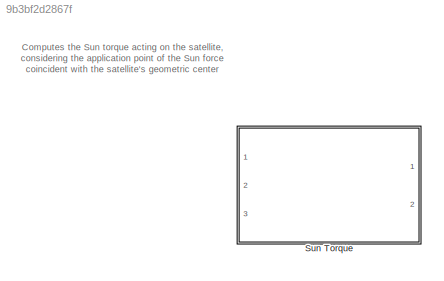
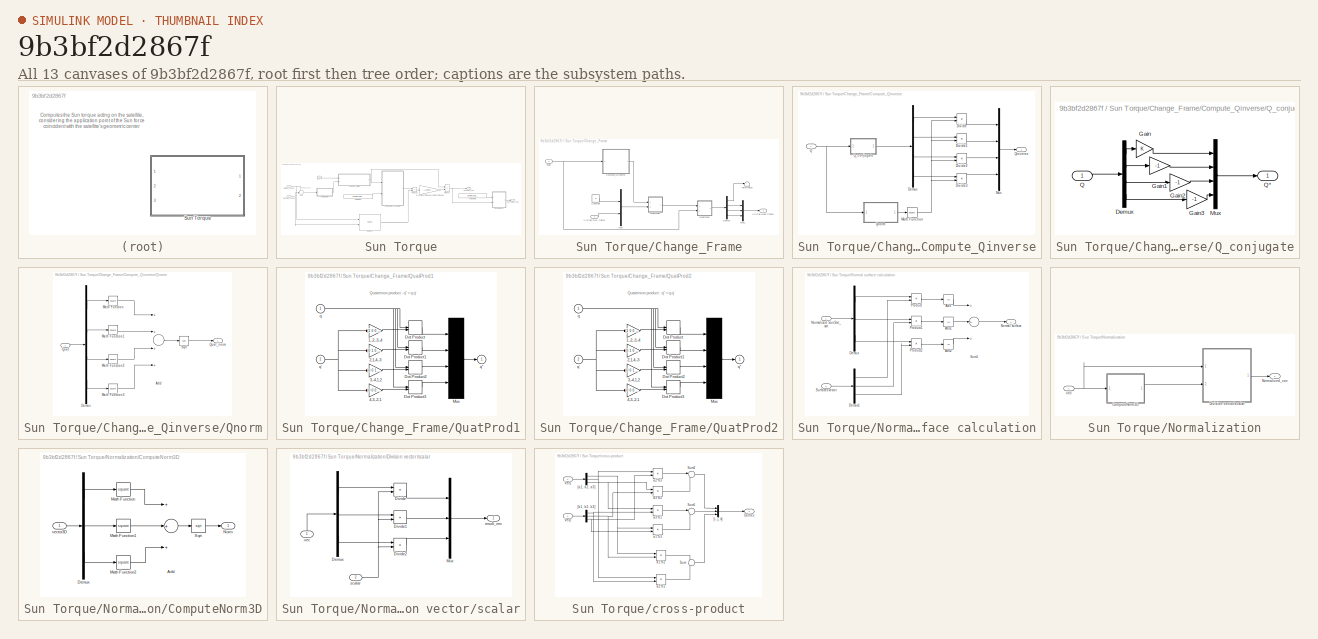
[diagram: thumbnail index - all 13 canvases of the model, root first then tree order]
MODEL slx_9b3bf2d2867f
KIND library
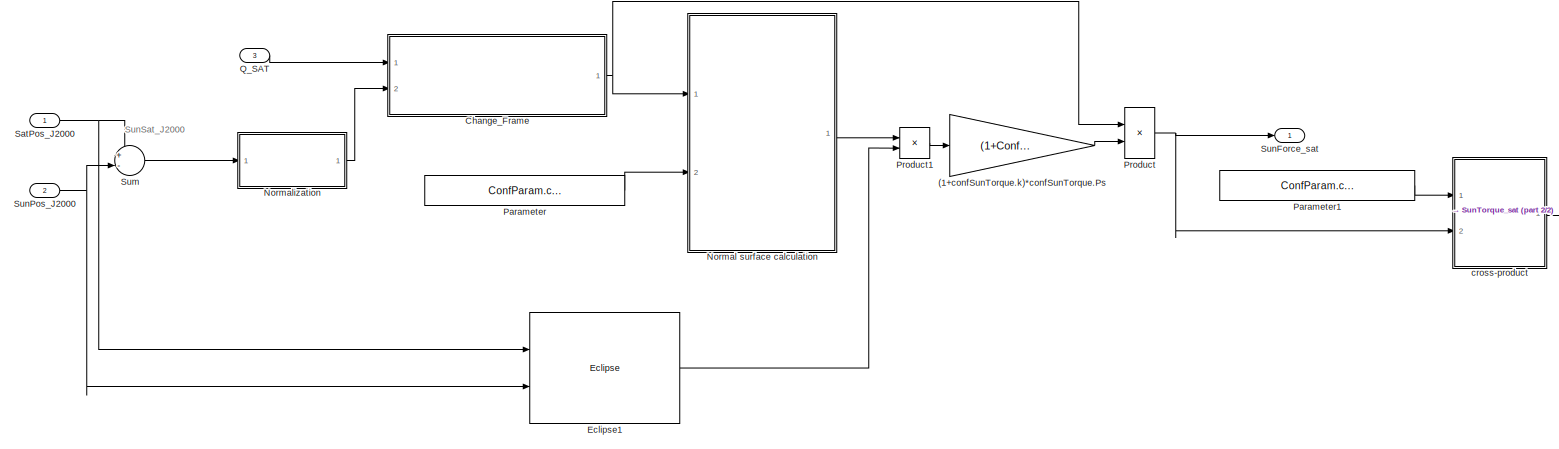
[diagram: Sun Torque - part 1/2, most of the canvas]
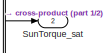
[diagram: Sun Torque - part 2/2, middle right region]
BLOCK [SubSystem] Sun Torque
  Ports = [3, 2]
  RequestExecContextInheritance = off
BLOCK [Gain] Sun Torque/(1+confSunTorque.k)*confSunTorque.Ps
  Gain = (1+ConfParam.confSunTorqueC.k)*ConfParam.confSunTorqueC.Ps
  OutDataTypeStr = Inherit: Inherit via internal rule
  ParamDataTypeStr = Inherit: Inherit via internal rule
  SaturateOnIntegerOverflow = off
BLOCK [SubSystem] Sun Torque/Change_Frame
  Ports = [2, 1]
  RequestExecContextInheritance = off
BLOCK [SubSystem] Sun Torque/Change_Frame/Compute_Qinverse
  Ports = [1, 1]
  RequestExecContextInheritance = off
BLOCK [Demux] Sun Torque/Change_Frame/Compute_Qinverse/Demux
  DisplayOption = bar
  Ports = [1, 4]
BLOCK [Product] Sun Torque/Change_Frame/Compute_Qinverse/Divide
  InputSameDT = off
  Inputs = */
  OutDataTypeStr = Inherit: Inherit via internal rule
  Ports = [2, 1]
  RndMeth = Floor
  SaturateOnIntegerOverflow = off
BLOCK [Product] Sun Torque/Change_Frame/Compute_Qinverse/Divide1
  InputSameDT = off
  Inputs = */
  OutDataTypeStr = Inherit: Inherit via internal rule
  Ports = [2, 1]
  RndMeth = Floor
  SaturateOnIntegerOverflow = off
BLOCK [Product] Sun Torque/Change_Frame/Compute_Qinverse/Divide2
  InputSameDT = off
  Inputs = */
  OutDataTypeStr = Inherit: Inherit via internal rule
  Ports = [2, 1]
  RndMeth = Floor
  SaturateOnIntegerOverflow = off
BLOCK [Product] Sun Torque/Change_Frame/Compute_Qinverse/Divide3
  InputSameDT = off
  Inputs = */
  OutDataTypeStr = Inherit: Inherit via internal rule
  Ports = [2, 1]
  RndMeth = Floor
  SaturateOnIntegerOverflow = off
BLOCK [Math] Sun Torque/Change_Frame/Compute_Qinverse/Math Function
  Operator = square
  Ports = [1, 1]
BLOCK [Mux] Sun Torque/Change_Frame/Compute_Qinverse/Mux
  DisplayOption = bar
  Ports = [4, 1]
BLOCK [Inport] Sun Torque/Change_Frame/Compute_Qinverse/Q
  IconDisplay = Port number
BLOCK [SubSystem] Sun Torque/Change_Frame/Compute_Qinverse/Q_conjugate
  Ports = [1, 1]
  RequestExecContextInheritance = off
BLOCK [Demux] Sun Torque/Change_Frame/Compute_Qinverse/Q_conjugate/Demux
  DisplayOption = bar
  Ports = [1, 4]
BLOCK [Gain] Sun Torque/Change_Frame/Compute_Qinverse/Q_conjugate/Gain
  OutDataTypeStr = Inherit: Inherit via internal rule
  ParamDataTypeStr = Inherit: Inherit via internal rule
  SaturateOnIntegerOverflow = off
BLOCK [Gain] Sun Torque/Change_Frame/Compute_Qinverse/Q_conjugate/Gain1
  Gain = -1
  OutDataTypeStr = Inherit: Inherit via internal rule
  ParamDataTypeStr = Inherit: Inherit via internal rule
  SaturateOnIntegerOverflow = off
BLOCK [Gain] Sun Torque/Change_Frame/Compute_Qinverse/Q_conjugate/Gain2
  Gain = -1
  OutDataTypeStr = Inherit: Inherit via internal rule
  ParamDataTypeStr = Inherit: Inherit via internal rule
  SaturateOnIntegerOverflow = off
BLOCK [Gain] Sun Torque/Change_Frame/Compute_Qinverse/Q_conjugate/Gain3
  Gain = -1
  OutDataTypeStr = Inherit: Inherit via internal rule
  ParamDataTypeStr = Inherit: Inherit via internal rule
  SaturateOnIntegerOverflow = off
BLOCK [Mux] Sun Torque/Change_Frame/Compute_Qinverse/Q_conjugate/Mux
  DisplayOption = bar
  Ports = [4, 1]
BLOCK [Inport] Sun Torque/Change_Frame/Compute_Qinverse/Q_conjugate/Q
  IconDisplay = Port number
BLOCK [Outport] Sun Torque/Change_Frame/Compute_Qinverse/Q_conjugate/Q*
  IconDisplay = Port number
BLOCK [Outport] Sun Torque/Change_Frame/Compute_Qinverse/Qinverse
  IconDisplay = Port number
BLOCK [SubSystem] Sun Torque/Change_Frame/Compute_Qinverse/Qnorm
  Ports = [1, 1]
  RequestExecContextInheritance = off
BLOCK [Sum] Sun Torque/Change_Frame/Compute_Qinverse/Qnorm/Add
  InputSameDT = off
  Inputs = ++++
  OutDataTypeStr = Inherit: Inherit via internal rule
  Ports = [4, 1]
  SaturateOnIntegerOverflow = off
BLOCK [Demux] Sun Torque/Change_Frame/Compute_Qinverse/Qnorm/Demux
  DisplayOption = bar
  Ports = [1, 4]
BLOCK [Math] Sun Torque/Change_Frame/Compute_Qinverse/Qnorm/Math Function
  Operator = square
  Ports = [1, 1]
BLOCK [Math] Sun Torque/Change_Frame/Compute_Qinverse/Qnorm/Math Function1
  Operator = square
  Ports = [1, 1]
BLOCK [Math] Sun Torque/Change_Frame/Compute_Qinverse/Qnorm/Math Function2
  Operator = square
  Ports = [1, 1]
BLOCK [Math] Sun Torque/Change_Frame/Compute_Qinverse/Qnorm/Math Function3
  Operator = square
  Ports = [1, 1]
BLOCK [Inport] Sun Torque/Change_Frame/Compute_Qinverse/Qnorm/Quat
  IconDisplay = Port number
BLOCK [Outport] Sun Torque/Change_Frame/Compute_Qinverse/Qnorm/Quat_norm
  IconDisplay = Port number
BLOCK [Sqrt] Sun Torque/Change_Frame/Compute_Qinverse/Qnorm/Sqrt
BLOCK [Constant] Sun Torque/Change_Frame/Constant
  Value = 0
BLOCK [Demux] Sun Torque/Change_Frame/Demux
  DisplayOption = bar
  Ports = [1, 4]
BLOCK [Mux] Sun Torque/Change_Frame/Mux
  DisplayOption = bar
  Inputs = 2
  Ports = [2, 1]
BLOCK [Mux] Sun Torque/Change_Frame/Mux1
  DisplayOption = bar
  Inputs = 3
  Ports = [3, 1]
BLOCK [SubSystem] Sun Torque/Change_Frame/QuatProd1
  Ports = [2, 1]
  RTWFcnNameOpts = Use subsystem name
  RTWFileNameOpts = Use subsystem name
  RTWSystemCode = Reusable function
  RequestExecContextInheritance = off
  TreatAsAtomicUnit = on
BLOCK [Gain] Sun Torque/Change_Frame/QuatProd1/1,-2,-3,-4
  Gain = [1 0 0 0;0 -1 0 0;0 0 -1 0;0 0 0 -1]
  Multiplication = Matrix(K*u) (u vector)
BLOCK [Gain] Sun Torque/Change_Frame/QuatProd1/2,1,4,-3
  Gain = [0 1 0 0 ; 1 0 0 0 ; 0 0 0 1 ; 0 0 -1 0]
  Multiplication = Matrix(K*u) (u vector)
BLOCK [Gain] Sun Torque/Change_Frame/QuatProd1/3,-4,1,2
  Gain = [0 0 1 0 ; 0 0 0 -1 ; 1 0 0 0 ; 0 1 0 0]
  Multiplication = Matrix(K*u) (u vector)
BLOCK [Gain] Sun Torque/Change_Frame/QuatProd1/4,3,-2,1
  Gain = [0 0 0 1;0 0 1 0 ; 0 -1 0 0 ; 1 0 0 0]
  Multiplication = Matrix(K*u) (u vector)
BLOCK [DotProduct] Sun Torque/Change_Frame/QuatProd1/Dot Product
  OutDataTypeStr = Inherit: Inherit via internal rule
BLOCK [DotProduct] Sun Torque/Change_Frame/QuatProd1/Dot Product1
  OutDataTypeStr = Inherit: Inherit via internal rule
BLOCK [DotProduct] Sun Torque/Change_Frame/QuatProd1/Dot Product2
  OutDataTypeStr = Inherit: Inherit via internal rule
BLOCK [DotProduct] Sun Torque/Change_Frame/QuatProd1/Dot Product3
  OutDataTypeStr = Inherit: Inherit via internal rule
BLOCK [Mux] Sun Torque/Change_Frame/QuatProd1/Mux
  Ports = [4, 1]
BLOCK [Inport] Sun Torque/Change_Frame/QuatProd1/q
  IconDisplay = Port number
  OutDataTypeStr = double
  PortDimensions = 4
BLOCK [Outport] Sun Torque/Change_Frame/QuatProd1/q"
  IconDisplay = Port number
  InitialOutput = 0
  OutDataTypeStr = double
  PortDimensions = 4
BLOCK [Inport] Sun Torque/Change_Frame/QuatProd1/q'
  IconDisplay = Port number
  OutDataTypeStr = double
  Port = 2
  PortDimensions = 4
BLOCK [SubSystem] Sun Torque/Change_Frame/QuatProd2
  Ports = [2, 1]
  RTWFcnNameOpts = Use subsystem name
  RTWFileNameOpts = Use subsystem name
  RTWSystemCode = Reusable function
  RequestExecContextInheritance = off
  TreatAsAtomicUnit = on
BLOCK [Gain] Sun Torque/Change_Frame/QuatProd2/1,-2,-3,-4
  Gain = [1 0 0 0;0 -1 0 0;0 0 -1 0;0 0 0 -1]
  Multiplication = Matrix(K*u) (u vector)
BLOCK [Gain] Sun Torque/Change_Frame/QuatProd2/2,1,4,-3
  Gain = [0 1 0 0 ; 1 0 0 0 ; 0 0 0 1 ; 0 0 -1 0]
  Multiplication = Matrix(K*u) (u vector)
BLOCK [Gain] Sun Torque/Change_Frame/QuatProd2/3,-4,1,2
  Gain = [0 0 1 0 ; 0 0 0 -1 ; 1 0 0 0 ; 0 1 0 0]
  Multiplication = Matrix(K*u) (u vector)
BLOCK [Gain] Sun Torque/Change_Frame/QuatProd2/4,3,-2,1
  Gain = [0 0 0 1;0 0 1 0 ; 0 -1 0 0 ; 1 0 0 0]
  Multiplication = Matrix(K*u) (u vector)
BLOCK [DotProduct] Sun Torque/Change_Frame/QuatProd2/Dot Product
  OutDataTypeStr = Inherit: Inherit via internal rule
BLOCK [DotProduct] Sun Torque/Change_Frame/QuatProd2/Dot Product1
  OutDataTypeStr = Inherit: Inherit via internal rule
BLOCK [DotProduct] Sun Torque/Change_Frame/QuatProd2/Dot Product2
  OutDataTypeStr = Inherit: Inherit via internal rule
BLOCK [DotProduct] Sun Torque/Change_Frame/QuatProd2/Dot Product3
  OutDataTypeStr = Inherit: Inherit via internal rule
BLOCK [Mux] Sun Torque/Change_Frame/QuatProd2/Mux
  Ports = [4, 1]
BLOCK [Inport] Sun Torque/Change_Frame/QuatProd2/q
  IconDisplay = Port number
  OutDataTypeStr = double
  PortDimensions = 4
BLOCK [Outport] Sun Torque/Change_Frame/QuatProd2/q"
  IconDisplay = Port number
  InitialOutput = 0
  OutDataTypeStr = double
  PortDimensions = 4
BLOCK [Inport] Sun Torque/Change_Frame/QuatProd2/q'
  IconDisplay = Port number
  OutDataTypeStr = double
  Port = 2
  PortDimensions = 4
BLOCK [Terminator] Sun Torque/Change_Frame/Terminator
BLOCK [Inport] Sun Torque/Change_Frame/quat
  IconDisplay = Port number
BLOCK [Outport] Sun Torque/Change_Frame/v in the NEW frame
  IconDisplay = Port number
BLOCK [Inport] Sun Torque/Change_Frame/v in the OLD frame
  IconDisplay = Port number
  Port = 2
BLOCK [Reference] Sun Torque/Eclipse1  REF=Eclipse/Eclipse
  Ports = [2, 1]
  SourceBlock = Eclipse/Eclipse
  SourceType = SubSystem
BLOCK [SubSystem] Sun Torque/Normal surface calculation
  Ports = [2, 1]
  RequestExecContextInheritance = off
BLOCK [Abs] Sun Torque/Normal surface calculation/Abs
  SaturateOnIntegerOverflow = off
BLOCK [Abs] Sun Torque/Normal surface calculation/Abs1
  SaturateOnIntegerOverflow = off
BLOCK [Abs] Sun Torque/Normal surface calculation/Abs2
  SaturateOnIntegerOverflow = off
BLOCK [Demux] Sun Torque/Normal surface calculation/Demux
  DisplayOption = bar
  Outputs = 3
  Ports = [1, 3]
BLOCK [Demux] Sun Torque/Normal surface calculation/Demux1
  DisplayOption = bar
  Outputs = 3
  Ports = [1, 3]
BLOCK [Outport] Sun Torque/Normal surface calculation/Normal surface
  IconDisplay = Port number
BLOCK [Inport] Sun Torque/Normal surface calculation/Normalized SunSat_sat 
  IconDisplay = Port number
BLOCK [Product] Sun Torque/Normal surface calculation/Product
  InputSameDT = off
  OutDataTypeStr = Inherit: Inherit via internal rule
  Ports = [2, 1]
  RndMeth = Floor
  SaturateOnIntegerOverflow = off
BLOCK [Product] Sun Torque/Normal surface calculation/Product1
  InputSameDT = off
  OutDataTypeStr = Inherit: Inherit via internal rule
  Ports = [2, 1]
  RndMeth = Floor
  SaturateOnIntegerOverflow = off
BLOCK [Product] Sun Torque/Normal surface calculation/Product2
  InputSameDT = off
  OutDataTypeStr = Inherit: Inherit via internal rule
  Ports = [2, 1]
  RndMeth = Floor
  SaturateOnIntegerOverflow = off
BLOCK [Sum] Sun Torque/Normal surface calculation/Sum1
  InputSameDT = off
  Inputs = +++
  OutDataTypeStr = Inherit: Inherit via internal rule
  Ports = [3, 1]
  SaturateOnIntegerOverflow = off
BLOCK [Inport] Sun Torque/Normal surface calculation/Surfaces vector
  IconDisplay = Port number
  Port = 2
BLOCK [SubSystem] Sun Torque/Normalization
  Ports = [1, 1]
  RequestExecContextInheritance = off
BLOCK [SubSystem] Sun Torque/Normalization/ComputeNorm3D
  Ports = [1, 1]
  RequestExecContextInheritance = off
BLOCK [Sum] Sun Torque/Normalization/ComputeNorm3D/Add
  InputSameDT = off
  Inputs = +++
  OutDataTypeStr = Inherit: Inherit via internal rule
  Ports = [3, 1]
  SaturateOnIntegerOverflow = off
BLOCK [Demux] Sun Torque/Normalization/ComputeNorm3D/Demux
  DisplayOption = bar
  Outputs = 3
  Ports = [1, 3]
BLOCK [Math] Sun Torque/Normalization/ComputeNorm3D/Math Function
  Operator = square
  Ports = [1, 1]
BLOCK [Math] Sun Torque/Normalization/ComputeNorm3D/Math Function1
  Operator = square
  Ports = [1, 1]
BLOCK [Math] Sun Torque/Normalization/ComputeNorm3D/Math Function2
  Operator = square
  Ports = [1, 1]
BLOCK [Outport] Sun Torque/Normalization/ComputeNorm3D/Norm
  IconDisplay = Port number
BLOCK [Sqrt] Sun Torque/Normalization/ComputeNorm3D/Sqrt
BLOCK [Inport] Sun Torque/Normalization/ComputeNorm3D/vector3D
  IconDisplay = Port number
BLOCK [SubSystem] Sun Torque/Normalization/Division vector//scalar
  Ports = [2, 1]
  RequestExecContextInheritance = off
BLOCK [Demux] Sun Torque/Normalization/Division vector//scalar/Demux
  DisplayOption = bar
  Outputs = 3
  Ports = [1, 3]
BLOCK [Product] Sun Torque/Normalization/Division vector//scalar/Divide
  InputSameDT = off
  Inputs = */
  OutDataTypeStr = Inherit: Inherit via internal rule
  Ports = [2, 1]
  RndMeth = Floor
  SaturateOnIntegerOverflow = off
BLOCK [Product] Sun Torque/Normalization/Division vector//scalar/Divide1
  InputSameDT = off
  Inputs = */
  OutDataTypeStr = Inherit: Inherit via internal rule
  Ports = [2, 1]
  RndMeth = Floor
  SaturateOnIntegerOverflow = off
BLOCK [Product] Sun Torque/Normalization/Division vector//scalar/Divide2
  InputSameDT = off
  Inputs = */
  OutDataTypeStr = Inherit: Inherit via internal rule
  Ports = [2, 1]
  RndMeth = Floor
  SaturateOnIntegerOverflow = off
BLOCK [Mux] Sun Torque/Normalization/Division vector//scalar/Mux
  DisplayOption = bar
  Inputs = 3
  Ports = [3, 1]
BLOCK [Outport] Sun Torque/Normalization/Division vector//scalar/result_vec
  IconDisplay = Port number
BLOCK [Inport] Sun Torque/Normalization/Division vector//scalar/scalar
  IconDisplay = Port number
  Port = 2
BLOCK [Inport] Sun Torque/Normalization/Division vector//scalar/vec
  IconDisplay = Port number
BLOCK [Outport] Sun Torque/Normalization/Normalized_vec
  IconDisplay = Port number
BLOCK [Inport] Sun Torque/Normalization/vec
  IconDisplay = Port number
BLOCK [Constant] Sun Torque/Parameter
  Value = ConfParam.confSatFeatures.Surfaces
BLOCK [Constant] Sun Torque/Parameter1
  Value = ConfParam.confSunTorqueC.LeverArm
BLOCK [Product] Sun Torque/Product
  InputSameDT = off
  OutDataTypeStr = Inherit: Inherit via internal rule
  Ports = [2, 1]
  RndMeth = Floor
  SaturateOnIntegerOverflow = off
BLOCK [Product] Sun Torque/Product1
  InputSameDT = off
  OutDataTypeStr = Inherit: Inherit via internal rule
  Ports = [2, 1]
  RndMeth = Floor
  SaturateOnIntegerOverflow = off
BLOCK [Inport] Sun Torque/Q_SAT
  IconDisplay = Port number
  Port = 3
BLOCK [Inport] Sun Torque/SatPos_J2000
  IconDisplay = Port number
BLOCK [Sum] Sun Torque/Sum
  IconShape = round
  InputSameDT = off
  Inputs = +-
  OutDataTypeStr = Inherit: Inherit via internal rule
  Ports = [2, 1]
  SaturateOnIntegerOverflow = off
BLOCK [Outport] Sun Torque/SunForce_sat
  IconDisplay = Port number
BLOCK [Inport] Sun Torque/SunPos_J2000
  IconDisplay = Port number
  Port = 2
BLOCK [Outport] Sun Torque/SunTorque_sat
  IconDisplay = Port number
  Port = 2
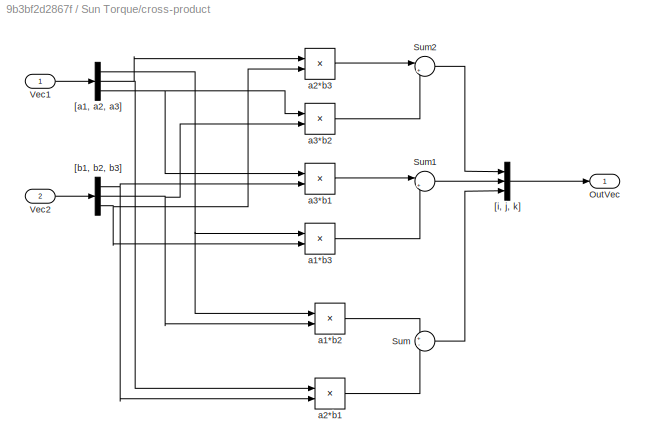
BLOCK [SubSystem] Sun Torque/cross-product
  Ports = [2, 1]
  RequestExecContextInheritance = off
BLOCK [Outport] Sun Torque/cross-product/OutVec
  IconDisplay = Port number
BLOCK [Sum] Sun Torque/cross-product/Sum
  IconShape = round
  InputSameDT = off
  Inputs = +-
  OutDataTypeStr = Inherit: Inherit via internal rule
  Ports = [2, 1]
  SaturateOnIntegerOverflow = off
BLOCK [Sum] Sun Torque/cross-product/Sum1
  IconShape = round
  InputSameDT = off
  Inputs = |+-
  OutDataTypeStr = Inherit: Inherit via internal rule
  Ports = [2, 1]
  SaturateOnIntegerOverflow = off
BLOCK [Sum] Sun Torque/cross-product/Sum2
  IconShape = round
  InputSameDT = off
  Inputs = |+-
  OutDataTypeStr = Inherit: Inherit via internal rule
  Ports = [2, 1]
  SaturateOnIntegerOverflow = off
BLOCK [Inport] Sun Torque/cross-product/Vec1
  IconDisplay = Port number
BLOCK [Inport] Sun Torque/cross-product/Vec2
  IconDisplay = Port number
  Port = 2
BLOCK [Demux] Sun Torque/cross-product/[a1, a2, a3]
  DisplayOption = bar
  Outputs = 3
  Ports = [1, 3]
BLOCK [Demux] Sun Torque/cross-product/[b1, b2, b3]
  DisplayOption = bar
  Outputs = 3
  Ports = [1, 3]
BLOCK [Mux] Sun Torque/cross-product/[i, j, k]
  DisplayOption = bar
  Inputs = 3
  Ports = [3, 1]
BLOCK [Product] Sun Torque/cross-product/a1*b2
  InputSameDT = off
  OutDataTypeStr = Inherit: Inherit via internal rule
  Ports = [2, 1]
  RndMeth = Floor
  SaturateOnIntegerOverflow = off
BLOCK [Product] Sun Torque/cross-product/a1*b3
  InputSameDT = off
  OutDataTypeStr = Inherit: Inherit via internal rule
  Ports = [2, 1]
  RndMeth = Floor
  SaturateOnIntegerOverflow = off
BLOCK [Product] Sun Torque/cross-product/a2*b1
  InputSameDT = off
  OutDataTypeStr = Inherit: Inherit via internal rule
  Ports = [2, 1]
  RndMeth = Floor
  SaturateOnIntegerOverflow = off
BLOCK [Product] Sun Torque/cross-product/a2*b3
  InputSameDT = off
  OutDataTypeStr = Inherit: Inherit via internal rule
  Ports = [2, 1]
  RndMeth = Floor
  SaturateOnIntegerOverflow = off
BLOCK [Product] Sun Torque/cross-product/a3*b1
  InputSameDT = off
  OutDataTypeStr = Inherit: Inherit via internal rule
  Ports = [2, 1]
  RndMeth = Floor
  SaturateOnIntegerOverflow = off
BLOCK [Product] Sun Torque/cross-product/a3*b2
  InputSameDT = off
  OutDataTypeStr = Inherit: Inherit via internal rule
  Ports = [2, 1]
  RndMeth = Floor
  SaturateOnIntegerOverflow = off
ANNOTATION (root): Computes the Sun torque acting on the satellite, considering the application point of the Sun force coincident with the satellite's geometric center
ANNOTATION Sun Torque: SunSat_J2000
ANNOTATION Sun Torque/Change_Frame/QuatProd1: Quaternion product : q" = q.q'
ANNOTATION Sun Torque/Change_Frame/QuatProd2: Quaternion product : q" = q.q'
LINE Sun Torque/(1+confSunTorque.k)*confSunTorque.Ps:1 -> Sun Torque/Product:2
LINE Sun Torque/Change_Frame/Compute_Qinverse/Demux:1 -> Sun Torque/Change_Frame/Compute_Qinverse/Divide:1
LINE Sun Torque/Change_Frame/Compute_Qinverse/Demux:2 -> Sun Torque/Change_Frame/Compute_Qinverse/Divide1:1
LINE Sun Torque/Change_Frame/Compute_Qinverse/Demux:3 -> Sun Torque/Change_Frame/Compute_Qinverse/Divide2:1
LINE Sun Torque/Change_Frame/Compute_Qinverse/Demux:4 -> Sun Torque/Change_Frame/Compute_Qinverse/Divide3:1
LINE Sun Torque/Change_Frame/Compute_Qinverse/Divide1:1 -> Sun Torque/Change_Frame/Compute_Qinverse/Mux:2
LINE Sun Torque/Change_Frame/Compute_Qinverse/Divide2:1 -> Sun Torque/Change_Frame/Compute_Qinverse/Mux:3
LINE Sun Torque/Change_Frame/Compute_Qinverse/Divide3:1 -> Sun Torque/Change_Frame/Compute_Qinverse/Mux:4
LINE Sun Torque/Change_Frame/Compute_Qinverse/Divide:1 -> Sun Torque/Change_Frame/Compute_Qinverse/Mux:1
NET Sun Torque/Change_Frame/Compute_Qinverse/Math Function:1 -> Sun Torque/Change_Frame/Compute_Qinverse/Divide1:2, Sun Torque/Change_Frame/Compute_Qinverse/Divide2:2, Sun Torque/Change_Frame/Compute_Qinverse/Divide3:2, Sun Torque/Change_Frame/Compute_Qinverse/Divide:2
LINE Sun Torque/Change_Frame/Compute_Qinverse/Mux:1 -> Sun Torque/Change_Frame/Compute_Qinverse/Qinverse:1
NET Sun Torque/Change_Frame/Compute_Qinverse/Q:1 -> Sun Torque/Change_Frame/Compute_Qinverse/Q_conjugate:1, Sun Torque/Change_Frame/Compute_Qinverse/Qnorm:1
LINE Sun Torque/Change_Frame/Compute_Qinverse/Q_conjugate/Demux:1 -> Sun Torque/Change_Frame/Compute_Qinverse/Q_conjugate/Gain:1
LINE Sun Torque/Change_Frame/Compute_Qinverse/Q_conjugate/Demux:2 -> Sun Torque/Change_Frame/Compute_Qinverse/Q_conjugate/Gain1:1
LINE Sun Torque/Change_Frame/Compute_Qinverse/Q_conjugate/Demux:3 -> Sun Torque/Change_Frame/Compute_Qinverse/Q_conjugate/Gain2:1
LINE Sun Torque/Change_Frame/Compute_Qinverse/Q_conjugate/Demux:4 -> Sun Torque/Change_Frame/Compute_Qinverse/Q_conjugate/Gain3:1
LINE Sun Torque/Change_Frame/Compute_Qinverse/Q_conjugate/Gain1:1 -> Sun Torque/Change_Frame/Compute_Qinverse/Q_conjugate/Mux:2
LINE Sun Torque/Change_Frame/Compute_Qinverse/Q_conjugate/Gain2:1 -> Sun Torque/Change_Frame/Compute_Qinverse/Q_conjugate/Mux:3
LINE Sun Torque/Change_Frame/Compute_Qinverse/Q_conjugate/Gain3:1 -> Sun Torque/Change_Frame/Compute_Qinverse/Q_conjugate/Mux:4
LINE Sun Torque/Change_Frame/Compute_Qinverse/Q_conjugate/Gain:1 -> Sun Torque/Change_Frame/Compute_Qinverse/Q_conjugate/Mux:1
LINE Sun Torque/Change_Frame/Compute_Qinverse/Q_conjugate/Mux:1 -> Sun Torque/Change_Frame/Compute_Qinverse/Q_conjugate/Q*:1
LINE Sun Torque/Change_Frame/Compute_Qinverse/Q_conjugate/Q:1 -> Sun Torque/Change_Frame/Compute_Qinverse/Q_conjugate/Demux:1
LINE Sun Torque/Change_Frame/Compute_Qinverse/Q_conjugate:1 -> Sun Torque/Change_Frame/Compute_Qinverse/Demux:1
LINE Sun Torque/Change_Frame/Compute_Qinverse/Qnorm/Add:1 -> Sun Torque/Change_Frame/Compute_Qinverse/Qnorm/Sqrt:1
LINE Sun Torque/Change_Frame/Compute_Qinverse/Qnorm/Demux:1 -> Sun Torque/Change_Frame/Compute_Qinverse/Qnorm/Math Function:1
LINE Sun Torque/Change_Frame/Compute_Qinverse/Qnorm/Demux:2 -> Sun Torque/Change_Frame/Compute_Qinverse/Qnorm/Math Function1:1
LINE Sun Torque/Change_Frame/Compute_Qinverse/Qnorm/Demux:3 -> Sun Torque/Change_Frame/Compute_Qinverse/Qnorm/Math Function2:1
LINE Sun Torque/Change_Frame/Compute_Qinverse/Qnorm/Demux:4 -> Sun Torque/Change_Frame/Compute_Qinverse/Qnorm/Math Function3:1
LINE Sun Torque/Change_Frame/Compute_Qinverse/Qnorm/Math Function1:1 -> Sun Torque/Change_Frame/Compute_Qinverse/Qnorm/Add:2
LINE Sun Torque/Change_Frame/Compute_Qinverse/Qnorm/Math Function2:1 -> Sun Torque/Change_Frame/Compute_Qinverse/Qnorm/Add:3
LINE Sun Torque/Change_Frame/Compute_Qinverse/Qnorm/Math Function3:1 -> Sun Torque/Change_Frame/Compute_Qinverse/Qnorm/Add:4
LINE Sun Torque/Change_Frame/Compute_Qinverse/Qnorm/Math Function:1 -> Sun Torque/Change_Frame/Compute_Qinverse/Qnorm/Add:1
LINE Sun Torque/Change_Frame/Compute_Qinverse/Qnorm/Quat:1 -> Sun Torque/Change_Frame/Compute_Qinverse/Qnorm/Demux:1
LINE Sun Torque/Change_Frame/Compute_Qinverse/Qnorm/Sqrt:1 -> Sun Torque/Change_Frame/Compute_Qinverse/Qnorm/Quat_norm:1
LINE Sun Torque/Change_Frame/Compute_Qinverse/Qnorm:1 -> Sun Torque/Change_Frame/Compute_Qinverse/Math Function:1
LINE Sun Torque/Change_Frame/Compute_Qinverse:1 -> Sun Torque/Change_Frame/QuatProd1:1
LINE Sun Torque/Change_Frame/Constant:1 -> Sun Torque/Change_Frame/Mux:1
LINE Sun Torque/Change_Frame/Demux:1 -> Sun Torque/Change_Frame/Terminator:1
LINE Sun Torque/Change_Frame/Demux:2 -> Sun Torque/Change_Frame/Mux1:1
LINE Sun Torque/Change_Frame/Demux:3 -> Sun Torque/Change_Frame/Mux1:2
LINE Sun Torque/Change_Frame/Demux:4 -> Sun Torque/Change_Frame/Mux1:3
LINE Sun Torque/Change_Frame/Mux1:1 -> Sun Torque/Change_Frame/v in the NEW frame:1
LINE Sun Torque/Change_Frame/Mux:1 -> Sun Torque/Change_Frame/QuatProd1:2
LINE Sun Torque/Change_Frame/QuatProd1/1,-2,-3,-4:1 -> Sun Torque/Change_Frame/QuatProd1/Dot Product:2
LINE Sun Torque/Change_Frame/QuatProd1/2,1,4,-3:1 -> Sun Torque/Change_Frame/QuatProd1/Dot Product1:2
LINE Sun Torque/Change_Frame/QuatProd1/3,-4,1,2:1 -> Sun Torque/Change_Frame/QuatProd1/Dot Product2:2
LINE Sun Torque/Change_Frame/QuatProd1/4,3,-2,1:1 -> Sun Torque/Change_Frame/QuatProd1/Dot Product3:2
LINE Sun Torque/Change_Frame/QuatProd1/Dot Product1:1 -> Sun Torque/Change_Frame/QuatProd1/Mux:2
LINE Sun Torque/Change_Frame/QuatProd1/Dot Product2:1 -> Sun Torque/Change_Frame/QuatProd1/Mux:3
LINE Sun Torque/Change_Frame/QuatProd1/Dot Product3:1 -> Sun Torque/Change_Frame/QuatProd1/Mux:4
LINE Sun Torque/Change_Frame/QuatProd1/Dot Product:1 -> Sun Torque/Change_Frame/QuatProd1/Mux:1
LINE Sun Torque/Change_Frame/QuatProd1/Mux:1 -> Sun Torque/Change_Frame/QuatProd1/q":1
NET Sun Torque/Change_Frame/QuatProd1/q':1 -> Sun Torque/Change_Frame/QuatProd1/1,-2,-3,-4:1, Sun Torque/Change_Frame/QuatProd1/2,1,4,-3:1, Sun Torque/Change_Frame/QuatProd1/3,-4,1,2:1, Sun Torque/Change_Frame/QuatProd1/4,3,-2,1:1
NET Sun Torque/Change_Frame/QuatProd1/q:1 -> Sun Torque/Change_Frame/QuatProd1/Dot Product1:1, Sun Torque/Change_Frame/QuatProd1/Dot Product2:1, Sun Torque/Change_Frame/QuatProd1/Dot Product3:1, Sun Torque/Change_Frame/QuatProd1/Dot Product:1
LINE Sun Torque/Change_Frame/QuatProd1:1 -> Sun Torque/Change_Frame/QuatProd2:1
LINE Sun Torque/Change_Frame/QuatProd2/1,-2,-3,-4:1 -> Sun Torque/Change_Frame/QuatProd2/Dot Product:2
LINE Sun Torque/Change_Frame/QuatProd2/2,1,4,-3:1 -> Sun Torque/Change_Frame/QuatProd2/Dot Product1:2
LINE Sun Torque/Change_Frame/QuatProd2/3,-4,1,2:1 -> Sun Torque/Change_Frame/QuatProd2/Dot Product2:2
LINE Sun Torque/Change_Frame/QuatProd2/4,3,-2,1:1 -> Sun Torque/Change_Frame/QuatProd2/Dot Product3:2
LINE Sun Torque/Change_Frame/QuatProd2/Dot Product1:1 -> Sun Torque/Change_Frame/QuatProd2/Mux:2
LINE Sun Torque/Change_Frame/QuatProd2/Dot Product2:1 -> Sun Torque/Change_Frame/QuatProd2/Mux:3
LINE Sun Torque/Change_Frame/QuatProd2/Dot Product3:1 -> Sun Torque/Change_Frame/QuatProd2/Mux:4
LINE Sun Torque/Change_Frame/QuatProd2/Dot Product:1 -> Sun Torque/Change_Frame/QuatProd2/Mux:1
LINE Sun Torque/Change_Frame/QuatProd2/Mux:1 -> Sun Torque/Change_Frame/QuatProd2/q":1
NET Sun Torque/Change_Frame/QuatProd2/q':1 -> Sun Torque/Change_Frame/QuatProd2/1,-2,-3,-4:1, Sun Torque/Change_Frame/QuatProd2/2,1,4,-3:1, Sun Torque/Change_Frame/QuatProd2/3,-4,1,2:1, Sun Torque/Change_Frame/QuatProd2/4,3,-2,1:1
NET Sun Torque/Change_Frame/QuatProd2/q:1 -> Sun Torque/Change_Frame/QuatProd2/Dot Product1:1, Sun Torque/Change_Frame/QuatProd2/Dot Product2:1, Sun Torque/Change_Frame/QuatProd2/Dot Product3:1, Sun Torque/Change_Frame/QuatProd2/Dot Product:1
LINE Sun Torque/Change_Frame/QuatProd2:1 -> Sun Torque/Change_Frame/Demux:1
NET Sun Torque/Change_Frame/quat:1 -> Sun Torque/Change_Frame/Compute_Qinverse:1, Sun Torque/Change_Frame/QuatProd2:2
LINE Sun Torque/Change_Frame/v in the OLD frame:1 -> Sun Torque/Change_Frame/Mux:2
NET Sun Torque/Change_Frame:1 -> Sun Torque/Normal surface calculation:1, Sun Torque/Product:1
LINE Sun Torque/Eclipse1:1 -> Sun Torque/Product1:2
LINE Sun Torque/Normal surface calculation/Abs1:1 -> Sun Torque/Normal surface calculation/Sum1:2
LINE Sun Torque/Normal surface calculation/Abs2:1 -> Sun Torque/Normal surface calculation/Sum1:3
LINE Sun Torque/Normal surface calculation/Abs:1 -> Sun Torque/Normal surface calculation/Sum1:1
LINE Sun Torque/Normal surface calculation/Demux1:1 -> Sun Torque/Normal surface calculation/Product:2
LINE Sun Torque/Normal surface calculation/Demux1:2 -> Sun Torque/Normal surface calculation/Product1:2
LINE Sun Torque/Normal surface calculation/Demux1:3 -> Sun Torque/Normal surface calculation/Product2:2
LINE Sun Torque/Normal surface calculation/Demux:1 -> Sun Torque/Normal surface calculation/Product:1
LINE Sun Torque/Normal surface calculation/Demux:2 -> Sun Torque/Normal surface calculation/Product1:1
LINE Sun Torque/Normal surface calculation/Demux:3 -> Sun Torque/Normal surface calculation/Product2:1
LINE Sun Torque/Normal surface calculation/Normalized SunSat_sat :1 -> Sun Torque/Normal surface calculation/Demux:1
LINE Sun Torque/Normal surface calculation/Product1:1 -> Sun Torque/Normal surface calculation/Abs1:1
LINE Sun Torque/Normal surface calculation/Product2:1 -> Sun Torque/Normal surface calculation/Abs2:1
LINE Sun Torque/Normal surface calculation/Product:1 -> Sun Torque/Normal surface calculation/Abs:1
LINE Sun Torque/Normal surface calculation/Sum1:1 -> Sun Torque/Normal surface calculation/Normal surface:1
LINE Sun Torque/Normal surface calculation/Surfaces vector:1 -> Sun Torque/Normal surface calculation/Demux1:1
LINE Sun Torque/Normal surface calculation:1 -> Sun Torque/Product1:1
LINE Sun Torque/Normalization/ComputeNorm3D/Add:1 -> Sun Torque/Normalization/ComputeNorm3D/Sqrt:1
LINE Sun Torque/Normalization/ComputeNorm3D/Demux:1 -> Sun Torque/Normalization/ComputeNorm3D/Math Function:1
LINE Sun Torque/Normalization/ComputeNorm3D/Demux:2 -> Sun Torque/Normalization/ComputeNorm3D/Math Function1:1
LINE Sun Torque/Normalization/ComputeNorm3D/Demux:3 -> Sun Torque/Normalization/ComputeNorm3D/Math Function2:1
LINE Sun Torque/Normalization/ComputeNorm3D/Math Function1:1 -> Sun Torque/Normalization/ComputeNorm3D/Add:2
LINE Sun Torque/Normalization/ComputeNorm3D/Math Function2:1 -> Sun Torque/Normalization/ComputeNorm3D/Add:3
LINE Sun Torque/Normalization/ComputeNorm3D/Math Function:1 -> Sun Torque/Normalization/ComputeNorm3D/Add:1
LINE Sun Torque/Normalization/ComputeNorm3D/Sqrt:1 -> Sun Torque/Normalization/ComputeNorm3D/Norm:1
LINE Sun Torque/Normalization/ComputeNorm3D/vector3D:1 -> Sun Torque/Normalization/ComputeNorm3D/Demux:1
LINE Sun Torque/Normalization/ComputeNorm3D:1 -> Sun Torque/Normalization/Division vector//scalar:2
LINE Sun Torque/Normalization/Division vector//scalar/Demux:1 -> Sun Torque/Normalization/Division vector//scalar/Divide:1
LINE Sun Torque/Normalization/Division vector//scalar/Demux:2 -> Sun Torque/Normalization/Division vector//scalar/Divide1:1
LINE Sun Torque/Normalization/Division vector//scalar/Demux:3 -> Sun Torque/Normalization/Division vector//scalar/Divide2:1
LINE Sun Torque/Normalization/Division vector//scalar/Divide1:1 -> Sun Torque/Normalization/Division vector//scalar/Mux:2
LINE Sun Torque/Normalization/Division vector//scalar/Divide2:1 -> Sun Torque/Normalization/Division vector//scalar/Mux:3
LINE Sun Torque/Normalization/Division vector//scalar/Divide:1 -> Sun Torque/Normalization/Division vector//scalar/Mux:1
LINE Sun Torque/Normalization/Division vector//scalar/Mux:1 -> Sun Torque/Normalization/Division vector//scalar/result_vec:1
NET Sun Torque/Normalization/Division vector//scalar/scalar:1 -> Sun Torque/Normalization/Division vector//scalar/Divide1:2, Sun Torque/Normalization/Division vector//scalar/Divide2:2, Sun Torque/Normalization/Division vector//scalar/Divide:2
LINE Sun Torque/Normalization/Division vector//scalar/vec:1 -> Sun Torque/Normalization/Division vector//scalar/Demux:1
LINE Sun Torque/Normalization/Division vector//scalar:1 -> Sun Torque/Normalization/Normalized_vec:1
NET Sun Torque/Normalization/vec:1 -> Sun Torque/Normalization/ComputeNorm3D:1, Sun Torque/Normalization/Division vector//scalar:1
LINE Sun Torque/Normalization:1 -> Sun Torque/Change_Frame:2
LINE Sun Torque/Parameter1:1 -> Sun Torque/cross-product:1
LINE Sun Torque/Parameter:1 -> Sun Torque/Normal surface calculation:2
LINE Sun Torque/Product1:1 -> Sun Torque/(1+confSunTorque.k)*confSunTorque.Ps:1
NET Sun Torque/Product:1 -> Sun Torque/SunForce_sat:1, Sun Torque/cross-product:2
LINE Sun Torque/Q_SAT:1 -> Sun Torque/Change_Frame:1
NET Sun Torque/SatPos_J2000:1 -> Sun Torque/Eclipse1:1, Sun Torque/Sum:1
LINE Sun Torque/Sum:1 -> Sun Torque/Normalization:1
NET Sun Torque/SunPos_J2000:1 -> Sun Torque/Eclipse1:2, Sun Torque/Sum:2
LINE Sun Torque/cross-product/Sum1:1 -> Sun Torque/cross-product/[i, j, k]:2
LINE Sun Torque/cross-product/Sum2:1 -> Sun Torque/cross-product/[i, j, k]:1
LINE Sun Torque/cross-product/Sum:1 -> Sun Torque/cross-product/[i, j, k]:3
LINE Sun Torque/cross-product/Vec1:1 -> Sun Torque/cross-product/[a1, a2, a3]:1
LINE Sun Torque/cross-product/Vec2:1 -> Sun Torque/cross-product/[b1, b2, b3]:1
NET Sun Torque/cross-product/[a1, a2, a3]:1 -> Sun Torque/cross-product/a1*b2:1, Sun Torque/cross-product/a1*b3:1
NET Sun Torque/cross-product/[a1, a2, a3]:2 -> Sun Torque/cross-product/a2*b1:1, Sun Torque/cross-product/a2*b3:1
NET Sun Torque/cross-product/[a1, a2, a3]:3 -> Sun Torque/cross-product/a3*b1:1, Sun Torque/cross-product/a3*b2:1
NET Sun Torque/cross-product/[b1, b2, b3]:1 -> Sun Torque/cross-product/a2*b1:2, Sun Torque/cross-product/a3*b1:2
NET Sun Torque/cross-product/[b1, b2, b3]:2 -> Sun Torque/cross-product/a1*b2:2, Sun Torque/cross-product/a3*b2:2
NET Sun Torque/cross-product/[b1, b2, b3]:3 -> Sun Torque/cross-product/a1*b3:2, Sun Torque/cross-product/a2*b3:2
LINE Sun Torque/cross-product/[i, j, k]:1 -> Sun Torque/cross-product/OutVec:1
LINE Sun Torque/cross-product/a1*b2:1 -> Sun Torque/cross-product/Sum:1
LINE Sun Torque/cross-product/a1*b3:1 -> Sun Torque/cross-product/Sum1:2
LINE Sun Torque/cross-product/a2*b1:1 -> Sun Torque/cross-product/Sum:2
LINE Sun Torque/cross-product/a2*b3:1 -> Sun Torque/cross-product/Sum2:1
LINE Sun Torque/cross-product/a3*b1:1 -> Sun Torque/cross-product/Sum1:1
LINE Sun Torque/cross-product/a3*b2:1 -> Sun Torque/cross-product/Sum2:2
LINE Sun Torque/cross-product:1 -> Sun Torque/SunTorque_sat:1
note: NET lines group one-source signal fan-out (src -> all destinations, sorted); 1:1 wires keep LINE
